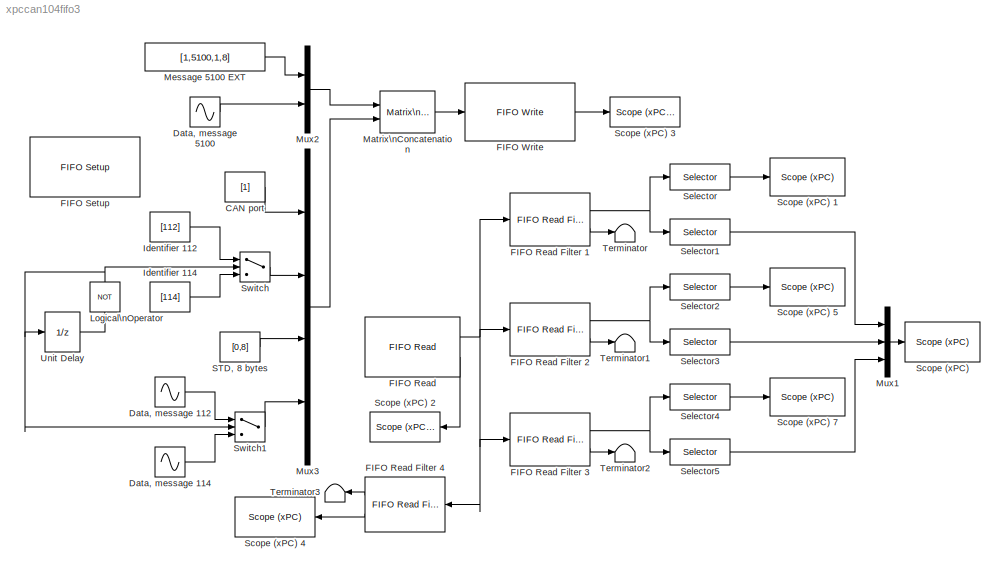
MODEL xpccan104fifo3
KIND model
CONFIG AbsTol = auto
CONFIG FixedStep = auto
CONFIG MaxStep = auto
CONFIG MinStep = auto
CONFIG RelTol = 1e-3
CONFIG Solver = FixedStepDiscrete
CONFIG SolverMode = Auto
CONFIG StartTime = 0.0
CONFIG StopTime = inf
BLOCK [Constant] CAN port
  Value = [1]
  VectorParams1D = off
BLOCK [Sin] Data, message 112
  Amplitude = 2
  Frequency = 20*2*pi
  Phase = 0
  SampleTime = 0.001
  VectorParams1D = on
BLOCK [Sin] Data, message 114
  Amplitude = 3
  Frequency = 20*2*pi
  Phase = 0
  SampleTime = 0.001
  VectorParams1D = on
BLOCK [Sin] Data, message 5100
  Amplitude = 1
  Frequency = 20*2*pi
  Phase = 0
  SampleTime = 0.001
  VectorParams1D = on
BLOCK [Reference] FIFO Read   REF=xpclib/CAN/Softing/CAN-AC2-104\nSJA 1000/FIFO Mode/FIFO Read 
  Ports = [0, 2]
  SourceBlock = xpclib/CAN/Softing/CAN-AC2-104\nSJA 1000/FIFO Mode/FIFO Read
  SourceType = canac2104readfifo
  board = 1
  depth = 2
  sampletime = 0.001
  status = on
BLOCK [Reference] FIFO Read Filter 1  REF=xpclib/CAN/Softing/CAN-AC2-PCI\nSJA 1000/FIFO Mode/FIFO Read Filter 
  Ports = [1, 2]
  SourceBlock = xpclib/CAN/Softing/CAN-AC2-PCI\nSJA 1000/FIFO Mode/FIFO Read Filter
  SourceType = canrcvfifofilter
  ctypein = EDF
  direction = Include
  ident = [5100]
  identsel = Include
  portin = 2
BLOCK [Reference] FIFO Read Filter 2  REF=xpclib/CAN/Softing/CAN-AC2-PCI\nSJA 1000/FIFO Mode/FIFO Read Filter 
  Ports = [1, 2]
  SourceBlock = xpclib/CAN/Softing/CAN-AC2-PCI\nSJA 1000/FIFO Mode/FIFO Read Filter
  SourceType = canrcvfifofilter
  ctypein = SDF
  direction = Include
  ident = [112]
  identsel = Include
  portin = 2
BLOCK [Reference] FIFO Read Filter 3  REF=xpclib/CAN/Softing/CAN-AC2-PCI\nSJA 1000/FIFO Mode/FIFO Read Filter 
  Ports = [1, 2]
  SourceBlock = xpclib/CAN/Softing/CAN-AC2-PCI\nSJA 1000/FIFO Mode/FIFO Read Filter
  SourceType = canrcvfifofilter
  ctypein = SDF
  direction = Include
  ident = [114]
  identsel = Include
  portin = 2
BLOCK [Reference] FIFO Read Filter 4  REF=xpclib/CAN/Softing/CAN-AC2-PCI\nSJA 1000/FIFO Mode/FIFO Read Filter 
  Ports = [1, 2]
  SourceBlock = xpclib/CAN/Softing/CAN-AC2-PCI\nSJA 1000/FIFO Mode/FIFO Read Filter
  SourceType = canrcvfifofilter
  ctypein = NE
  direction = Include
  ident = []
  identsel = Include
  portin = 2
BLOCK [Reference] FIFO Setup   REF=xpclib/CAN/Softing/CAN-AC2-104\nSJA 1000/FIFO Mode/FIFO Setup 
  Ports = []
  SourceBlock = xpclib/CAN/Softing/CAN-AC2-104\nSJA 1000/FIFO Mode/FIFO Setup
  SourceType = canac2104setupfifo
  acc1 = [0,0,0,0]
  acc2 = [0,0,0,0]
  board = 1
  can1Baudrate = 1 MBaud
  can1UserBR = [1,1,4,3]
  can2Baudrate = 1 MBaud
  can2UserBR = [1,1,4,3]
  efdetection = off
  init = []
  intNo = None
  ioBaseAddressL = 0x300
  memBaseAddressL = 0xd0000
  term = []
BLOCK [Reference] FIFO Write   REF=xpclib/CAN/Softing/CAN-AC2-104\nSJA 1000/FIFO Mode/FIFO Write 
  Ports = [1, 1]
  SourceBlock = xpclib/CAN/Softing/CAN-AC2-104\nSJA 1000/FIFO Mode/FIFO Write
  SourceType = canac2104writefifo
  board = 1
  sampletime = -1
  status = on
BLOCK [Constant] Identifier 112
  Value = [112]
  VectorParams1D = off
BLOCK [Constant] Identifier 114
  Value = [114]
  VectorParams1D = off
BLOCK [Logic] Logical\nOperator
  Inputs = 2
  Operator = NOT
  Ports = [1, 1]
BLOCK [Reference] Matrix\nConcatenation  REF=simulink3/Signals\n& Systems/Matrix\nConcatenation
  Ports = [2, 1]
  SourceBlock = simulink3/Signals\n& Systems/Matrix\nConcatenation
  SourceType = Matrix Concatenation
  catMethod = Vertical
  numInports = 2
BLOCK [Constant] Message 5100 EXT
  Value = [1,5100,1,8]
  VectorParams1D = off
BLOCK [Mux] Mux1
  DisplayOption = bar
  Inputs = 3
  Ports = [3, 1]
BLOCK [Mux] Mux2
  DisplayOption = bar
  Inputs = 2
  Ports = [2, 1]
BLOCK [Mux] Mux3
  DisplayOption = bar
  Inputs = 4
  Ports = [4, 1]
BLOCK [Constant] STD, 8 bytes
  Value = [0,8]
  VectorParams1D = off
BLOCK [Reference] Scope (xPC)   REF=xpclib/Misc./Scope (xPC) 
  Ports = [1]
  SourceBlock = xpclib/Misc./Scope (xPC)
  SourceType = xpcscopeblock
  autostart = on
  grid = on
  interleave = 1
  noprepostsamples = 0
  nosamples = 100
  scopeno = 3
  scopetype = Target
  triggerlevel = 0.0
  triggermode = FreeRun
  triggerscope = 1
  triggersignal = 1
  triggerslope = either
  viewmode = Graphical redraw
  ylimits = [0,0]
BLOCK [Reference] Scope (xPC) 1  REF=xpclib/Misc./Scope (xPC) 
  Ports = [1]
  SourceBlock = xpclib/Misc./Scope (xPC)
  SourceType = xpcscopeblock
  autostart = on
  grid = on
  interleave = 1
  noprepostsamples = 0
  nosamples = 3
  scopeno = 4
  scopetype = Target
  triggerlevel = 0.0
  triggermode = FreeRun
  triggerscope = 1
  triggersignal = 1
  triggerslope = either
  viewmode = Numerical
  ylimits = [0,0]
BLOCK [Reference] Scope (xPC) 2  REF=xpclib/Misc./Scope (xPC) 
  Ports = [1]
  SourceBlock = xpclib/Misc./Scope (xPC)
  SourceType = xpcscopeblock
  autostart = on
  grid = on
  interleave = 1
  noprepostsamples = 0
  nosamples = 3
  scopeno = 2
  scopetype = Target
  triggerlevel = 0.0
  triggermode = FreeRun
  triggerscope = 1
  triggersignal = 1
  triggerslope = either
  viewmode = Numerical
  ylimits = [0,0]
BLOCK [Reference] Scope (xPC) 3  REF=xpclib/Misc./Scope (xPC) 
  Ports = [1]
  SourceBlock = xpclib/Misc./Scope (xPC)
  SourceType = xpcscopeblock
  autostart = on
  grid = on
  interleave = 1
  noprepostsamples = 0
  nosamples = 3
  scopeno = 1
  scopetype = Target
  triggerlevel = 0.0
  triggermode = FreeRun
  triggerscope = 1
  triggersignal = 1
  triggerslope = either
  viewmode = Numerical
  ylimits = [0,0]
BLOCK [Reference] Scope (xPC) 4  REF=xpclib/Misc./Scope (xPC) 
  Ports = [1]
  SourceBlock = xpclib/Misc./Scope (xPC)
  SourceType = xpcscopeblock
  autostart = on
  grid = on
  interleave = 1
  noprepostsamples = 0
  nosamples = 3
  scopeno = 7
  scopetype = Target
  triggerlevel = 0.0
  triggermode = FreeRun
  triggerscope = 1
  triggersignal = 1
  triggerslope = either
  viewmode = Numerical
  ylimits = [0,0]
BLOCK [Reference] Scope (xPC) 5  REF=xpclib/Misc./Scope (xPC) 
  Ports = [1]
  SourceBlock = xpclib/Misc./Scope (xPC)
  SourceType = xpcscopeblock
  autostart = on
  grid = on
  interleave = 1
  noprepostsamples = 0
  nosamples = 3
  scopeno = 5
  scopetype = Target
  triggerlevel = 0.0
  triggermode = FreeRun
  triggerscope = 1
  triggersignal = 1
  triggerslope = either
  viewmode = Numerical
  ylimits = [0,0]
BLOCK [Reference] Scope (xPC) 7  REF=xpclib/Misc./Scope (xPC) 
  Ports = [1]
  SourceBlock = xpclib/Misc./Scope (xPC)
  SourceType = xpcscopeblock
  autostart = on
  grid = on
  interleave = 1
  noprepostsamples = 0
  nosamples = 3
  scopeno = 6
  scopetype = Target
  triggerlevel = 0.0
  triggermode = FreeRun
  triggerscope = 1
  triggersignal = 1
  triggerslope = either
  viewmode = Numerical
  ylimits = [0,0]
BLOCK [Selector] Selector
  ColumnSrc = Internal
  Columns = 1
  ElementSrc = Internal
  Elements = [1:5]
  InputPortWidth = 6
  InputType = Vector
  Ports = [1, 1]
  RowSrc = Internal
  Rows = 1
BLOCK [Selector] Selector1
  ColumnSrc = Internal
  Columns = 1
  ElementSrc = Internal
  Elements = [6]
  InputPortWidth = 6
  InputType = Vector
  Ports = [1, 1]
  RowSrc = Internal
  Rows = 1
BLOCK [Selector] Selector2
  ColumnSrc = Internal
  Columns = 1
  ElementSrc = Internal
  Elements = [1:5]
  InputPortWidth = 6
  InputType = Vector
  Ports = [1, 1]
  RowSrc = Internal
  Rows = 1
BLOCK [Selector] Selector3
  ColumnSrc = Internal
  Columns = 1
  ElementSrc = Internal
  Elements = [6]
  InputPortWidth = 6
  InputType = Vector
  Ports = [1, 1]
  RowSrc = Internal
  Rows = 1
BLOCK [Selector] Selector4
  ColumnSrc = Internal
  Columns = 1
  ElementSrc = Internal
  Elements = [1:5]
  InputPortWidth = 6
  InputType = Vector
  Ports = [1, 1]
  RowSrc = Internal
  Rows = 1
BLOCK [Selector] Selector5
  ColumnSrc = Internal
  Columns = 1
  ElementSrc = Internal
  Elements = [6]
  InputPortWidth = 6
  InputType = Vector
  Ports = [1, 1]
  RowSrc = Internal
  Rows = 1
BLOCK [Switch] Switch
  Threshold = 0.5
BLOCK [Switch] Switch1
  Threshold = 0.5
BLOCK [Terminator] Terminator
BLOCK [Terminator] Terminator1
BLOCK [Terminator] Terminator2
BLOCK [Terminator] Terminator3
BLOCK [UnitDelay] Unit Delay
  SampleTime = 0.001
  X0 = 0
LINE CAN port:1 -> Mux3:1
LINE Data, message 112:1 -> Switch1:1
LINE Data, message 114:1 -> Switch1:3
LINE Data, message 5100:1 -> Mux2:2
NET FIFO Read :1 -> FIFO Read Filter 1:1, FIFO Read Filter 2:1, FIFO Read Filter 3:1, FIFO Read Filter 4:1
LINE FIFO Read :2 -> Scope (xPC) 2:1
NET FIFO Read Filter 1:1 -> Selector1:1, Selector:1
LINE FIFO Read Filter 1:2 -> Terminator:1
NET FIFO Read Filter 2:1 -> Selector2:1, Selector3:1
LINE FIFO Read Filter 2:2 -> Terminator1:1
NET FIFO Read Filter 3:1 -> Selector4:1, Selector5:1
LINE FIFO Read Filter 3:2 -> Terminator2:1
LINE FIFO Read Filter 4:1 -> Terminator3:1
LINE FIFO Read Filter 4:2 -> Scope (xPC) 4:1
LINE FIFO Write :1 -> Scope (xPC) 3:1
LINE Identifier 112:1 -> Switch:1
LINE Identifier 114:1 -> Switch:3
NET Logical\nOperator:1 -> Switch1:2, Switch:2, Unit Delay:1
LINE Matrix\nConcatenation:1 -> FIFO Write :1
LINE Message 5100 EXT:1 -> Mux2:1
LINE Mux1:1 -> Scope (xPC) :1
LINE Mux2:1 -> Matrix\nConcatenation:1
LINE Mux3:1 -> Matrix\nConcatenation:2
LINE STD, 8 bytes:1 -> Mux3:3
LINE Selector1:1 -> Mux1:1
LINE Selector2:1 -> Scope (xPC) 5:1
LINE Selector3:1 -> Mux1:2
LINE Selector4:1 -> Scope (xPC) 7:1
LINE Selector5:1 -> Mux1:3
LINE Selector:1 -> Scope (xPC) 1:1
LINE Switch1:1 -> Mux3:4
LINE Switch:1 -> Mux3:2
LINE Unit Delay:1 -> Logical\nOperator:1
note: NET lines group one-source signal fan-out (src -> all destinations, sorted); 1:1 wires keep LINE
